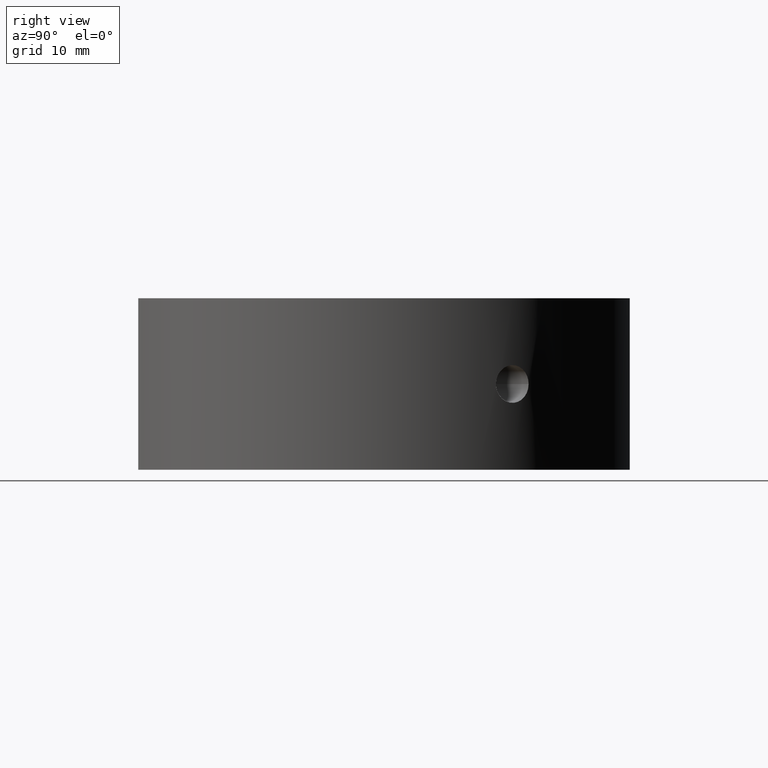
[diagram: clean part render]
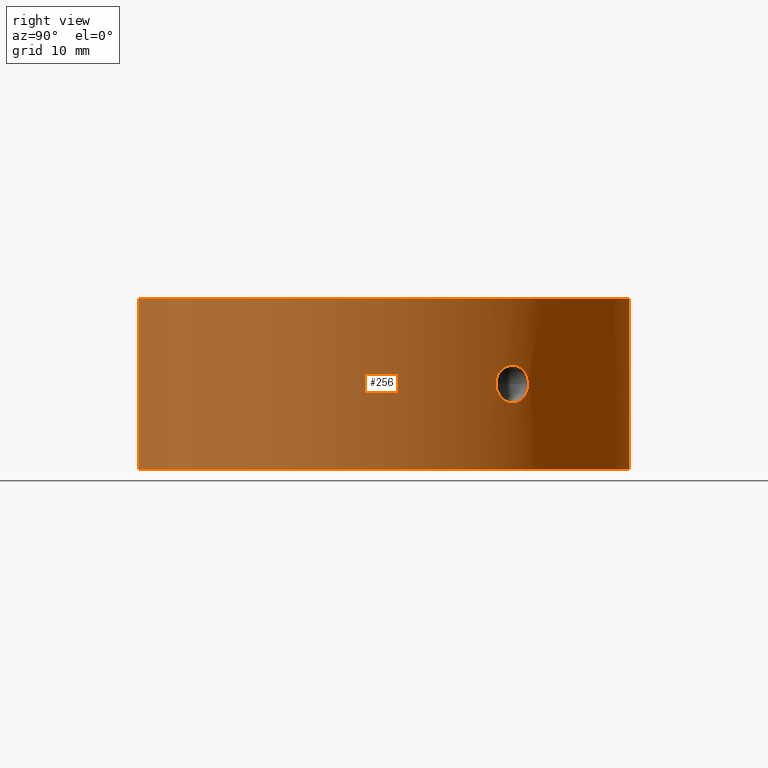
[diagram: same view with one face highlighted and labeled with its STEP entity id]
A machine part, right view. The second image highlights one B-rep face of the part: STEP entity #256.
In plain terms, the highlighted cylindrical surface (partial cylindrical patch) has radius 22.5 mm, axis along (-0, -0, -1).
Its self-contained STEP definition (entity closure, byte-faithful):
#4 = CARTESIAN_POINT ( 'NONE',  ( 18.96389148177692300, 12.10904087917749400, 1.313203471232422300 ) ) ;
#36 = DIRECTION ( 'NONE',  ( -1.000000000000000000, 0.0000000000000000000, 1.156482317317871200E-016 ) ) ;
#67 = CARTESIAN_POINT ( 'NONE',  ( 20.18473157008367700, 9.941244071603097900, -0.7313887006983229600 ) ) ;
#72 = CARTESIAN_POINT ( 'NONE',  ( 19.53910750579124300, 11.15727871636572900, -1.650038529183563800 ) ) ;
#78 = CARTESIAN_POINT ( 'NONE',  ( 18.73010285221147700, 12.46743142315655500, -0.8266368506187205000 ) ) ;
#83 = CARTESIAN_POINT ( 'NONE',  ( 19.59356080178675400, 11.06135154531891600, 1.639150382823926200 ) ) ;
#87 = CARTESIAN_POINT ( 'NONE',  ( 19.05986652157282200, 11.95740520874118400, 1.432719790953435300 ) ) ;
#93 = CARTESIAN_POINT ( 'NONE',  ( 18.79343630011566200, 12.37255088691544100, 1.015440336546102900 ) ) ;
#106 = EDGE_CURVE ( 'NONE', #108, #607, #620, .T. ) ;
#108 = VERTEX_POINT ( 'NONE', #494 ) ;
#118 = DIRECTION ( 'NONE',  ( -1.000000000000000000, 0.0000000000000000000, 1.156482317317871500E-016 ) ) ;
#151 = CARTESIAN_POINT ( 'NONE',  ( 20.25340311474541400, 9.800515791998238400, -0.2171000533953872100 ) ) ;
#153 = CARTESIAN_POINT ( 'NONE',  ( 20.07767266165317800, 10.15593481411592300, -1.089943829978071500 ) ) ;
#155 = CARTESIAN_POINT ( 'NONE',  ( 19.74581530394777200, 10.78715753496944500, -1.565974926310358000 ) ) ;
#162 = CARTESIAN_POINT ( 'NONE',  ( 20.00755817031876700, 10.29337493334318200, -1.243967150874418100 ) ) ;
#165 = CARTESIAN_POINT ( 'NONE',  ( 6.633249580710828900, 21.49999999999999300, -7.500000000000000000 ) ) ;
#171 = CARTESIAN_POINT ( 'NONE',  ( 20.25810641662825200, 9.790767304586779600, 2.020667263021903900E-016 ) ) ;
#181 = CARTESIAN_POINT ( 'NONE',  ( 19.26743418317145300, 11.62136030729271000, 1.607441041680906400 ) ) ;
#186 = VERTEX_POINT ( 'NONE', #755 ) ;
#195 = VECTOR ( 'NONE', #868, 1000.000000000000000 ) ;
#217 = VECTOR ( 'NONE', #804, 1000.000000000000000 ) ;
#228 = AXIS2_PLACEMENT_3D ( 'NONE', #933, #483, #36 ) ;
#230 = CARTESIAN_POINT ( 'NONE',  ( 18.60810641662824200, 12.64865113707539900, 0.0000000000000000000 ) ) ;
#231 = DIRECTION ( 'NONE',  ( -1.224646799147350500E-016, -0.0000000000000000000, -1.000000000000000000 ) ) ;
#254 = CARTESIAN_POINT ( 'NONE',  ( 18.63773781758335700, 12.60496612890543800, -0.4272369033474191500 ) ) ;
#256 = ADVANCED_FACE ( 'NONE', ( #989, #742 ), #684, .T. ) ;
#270 = CARTESIAN_POINT ( 'NONE',  ( 19.54067840921549100, 11.15453927637232200, 1.649912014729165900 ) ) ;
#274 = CARTESIAN_POINT ( 'NONE',  ( 19.96958515143046100, 10.36695330167975700, 1.311713029802912500 ) ) ;
#334 = CARTESIAN_POINT ( 'NONE',  ( 19.69629958059857300, 10.87736110970828200, -1.597151308643778300 ) ) ;
#342 = AXIS2_PLACEMENT_3D ( 'NONE', #759, #231, #565 ) ;
#348 = CARTESIAN_POINT ( 'NONE',  ( 19.37734541238811700, 11.43747880483520200, 1.650174374395400700 ) ) ;
#353 = CARTESIAN_POINT ( 'NONE',  ( 18.63292042189521100, 12.61233949260522600, 0.4347098583132117900 ) ) ;
#361 = CIRCLE ( 'NONE', #599, 22.50000000000000000 ) ;
#362 = CARTESIAN_POINT ( 'NONE',  ( 19.11014104238670800, 11.87697428593569000, 1.483341811114536400 ) ) ;
#384 = B_SPLINE_CURVE_WITH_KNOTS ( 'NONE', 3,
 ( #230, #517, #790, #254, #1115, #1119, #78, #1041, #698, #600, #1127, #955, #594, #72, #690, #334, #155, #511, #429, #1038, #162, #153, #878, #1124, #67, #596, #685, #151, #869, #956 ),
 .UNSPECIFIED., .F., .F.,
 ( 4, 2, 2, 2, 2, 2, 2, 2, 2, 2, 2, 2, 2, 2, 4 ),
 ( 0.0000000000000000000, 0.0003225239514759126100, 0.0006450479029518250100, 0.0009675718544277375200, 0.001290095805903649600, 0.001935143708855469600, 0.002580191611807289200, 0.002902715563283199800, 0.003225239514759109000, 0.003547763466235018700, 0.003870287417710928800, 0.004192811369186838500, 0.004515335320662747800, 0.004837859272138657900, 0.005160383223614567100 ),
 .UNSPECIFIED. ) ;
#413 = ORIENTED_EDGE ( 'NONE', *, *, #106, .T. ) ;
#414 = VERTEX_POINT ( 'NONE', #556 ) ;
#426 = CARTESIAN_POINT ( 'NONE',  ( 6.633249580710816500, -21.50000000000000000, 7.499999999999992000 ) ) ;
#429 = CARTESIAN_POINT ( 'NONE',  ( 19.88622612528881500, 10.52596851185639600, -1.431620527020546900 ) ) ;
#434 = CARTESIAN_POINT ( 'NONE',  ( 18.60810641662824200, 12.64865113707539900, 0.2180671979923877500 ) ) ;
#438 = EDGE_LOOP ( 'NONE', ( #1036, #456 ) ) ;
#440 = VERTEX_POINT ( 'NONE', #165 ) ;
#444 = CARTESIAN_POINT ( 'NONE',  ( 6.633249580710826300, -21.49999999999999300, -31.93906810035839800 ) ) ;
#456 = ORIENTED_EDGE ( 'NONE', *, *, #695, .T. ) ;
#471 = ORIENTED_EDGE ( 'NONE', *, *, #982, .F. ) ;
#483 = DIRECTION ( 'NONE',  ( -1.224646799147350500E-016, -0.0000000000000000000, -1.000000000000000000 ) ) ;
#494 = CARTESIAN_POINT ( 'NONE',  ( 6.633249580710813800, 21.50000000000000000, 7.499999999999999100 ) ) ;
#501 = EDGE_LOOP ( 'NONE', ( #413, #1037, #471, #739 ) ) ;
#511 = CARTESIAN_POINT ( 'NONE',  ( 19.84087060976508700, 10.61130732513321500, -1.483293915646772200 ) ) ;
#517 = CARTESIAN_POINT ( 'NONE',  ( 18.60810641662823500, 12.64865113707539900, -0.1090587332655388500 ) ) ;
#520 = CARTESIAN_POINT ( 'NONE',  ( 19.84179210325432100, 10.60958297846797300, 1.482324220416189900 ) ) ;
#523 = CARTESIAN_POINT ( 'NONE',  ( 19.74687136095041900, 10.78522305285518700, 1.565221042383190700 ) ) ;
#527 = CARTESIAN_POINT ( 'NONE',  ( 19.88626233924009400, 10.52590243420305400, 1.431603215071190400 ) ) ;
#556 = CARTESIAN_POINT ( 'NONE',  ( 6.633249580710804900, -21.50000000000000000, -7.500000000000004400 ) ) ;
#565 = DIRECTION ( 'NONE',  ( -1.000000000000000000, 0.0000000000000000000, 0.0000000000000000000 ) ) ;
#594 = CARTESIAN_POINT ( 'NONE',  ( 19.37761152460760200, 11.43698096140482300, -1.649922622886365700 ) ) ;
#596 = CARTESIAN_POINT ( 'NONE',  ( 20.22126622842621300, 9.866717507186761400, -0.5314702050519211100 ) ) ;
#599 = AXIS2_PLACEMENT_3D ( 'NONE', #1090, #743, #118 ) ;
#600 = CARTESIAN_POINT ( 'NONE',  ( 18.95906081688356100, 12.11722920627536300, -1.319097808869327700 ) ) ;
#601 = EDGE_CURVE ( 'NONE', #186, #822, #384, .T. ) ;
#606 = CARTESIAN_POINT ( 'NONE',  ( 6.633249580710826300, 21.49999999999999300, -31.93906810035839800 ) ) ;
#607 = VERTEX_POINT ( 'NONE', #426 ) ;
#609 = CARTESIAN_POINT ( 'NONE',  ( 20.16681055186465300, 9.977802294282504600, 0.8296025954351868800 ) ) ;
#618 = CARTESIAN_POINT ( 'NONE',  ( 18.91794215107792400, 12.18061084767195200, 1.243597569724803000 ) ) ;
#620 = CIRCLE ( 'NONE', #228, 22.50000000000000400 ) ;
#638 = LINE ( 'NONE', #606, #195 ) ;
#639 = EDGE_CURVE ( 'NONE', #440, #108, #638, .T. ) ;
#684 = CYLINDRICAL_SURFACE ( 'NONE', #342, 22.50000000000000000 ) ;
#685 = CARTESIAN_POINT ( 'NONE',  ( 20.23493833666115500, 9.838583131178307200, -0.4286018244349812400 ) ) ;
#690 = CARTESIAN_POINT ( 'NONE',  ( 19.59309703604851200, 11.06217656773153700, -1.639300148209339400 ) ) ;
#695 = EDGE_CURVE ( 'NONE', #822, #186, #821, .T. ) ;
#696 = CARTESIAN_POINT ( 'NONE',  ( 20.25810641662825500, 9.790767304586777800, 0.2153612982077320300 ) ) ;
#698 = CARTESIAN_POINT ( 'NONE',  ( 18.83463741298944800, 12.30903087960800800, -1.090865916825005700 ) ) ;
#706 = CARTESIAN_POINT ( 'NONE',  ( 20.00850956081370300, 10.29151770626310700, 1.242018767666875700 ) ) ;
#739 = ORIENTED_EDGE ( 'NONE', *, *, #639, .T. ) ;
#742 = FACE_OUTER_BOUND ( 'NONE', #501, .T. ) ;
#743 = DIRECTION ( 'NONE',  ( -1.224646799147350500E-016, -0.0000000000000000000, -1.000000000000000000 ) ) ;
#755 = CARTESIAN_POINT ( 'NONE',  ( 18.60810641662824200, 12.64865113707539900, 0.0000000000000000000 ) ) ;
#759 = CARTESIAN_POINT ( 'NONE',  ( 0.0000000000000000000, 0.0000000000000000000, -31.93906810035839800 ) ) ;
#790 = CARTESIAN_POINT ( 'NONE',  ( 18.61414754889360200, 12.63977662365315000, -0.2162874750742585200 ) ) ;
#799 = CARTESIAN_POINT ( 'NONE',  ( 20.23933298233901500, 9.829861997433777500, 0.4324585402576654500 ) ) ;
#804 = DIRECTION ( 'NONE',  ( -1.224646799147350500E-016, -0.0000000000000000000, -1.000000000000000000 ) ) ;
#821 = B_SPLINE_CURVE_WITH_KNOTS ( 'NONE', 3,
 ( #864, #696, #799, #609, #1047, #706, #274, #527, #520, #523, #1131, #83, #270, #348, #181, #362, #87, #4, #618, #93, #1054, #353, #434, #886 ),
 .UNSPECIFIED., .F., .F.,
 ( 4, 2, 2, 2, 2, 2, 2, 2, 2, 2, 2, 4 ),
 ( 0.005160383223614567100, 0.005805282465315264800, 0.006450181707015961500, 0.006772631327866309100, 0.007095080948716655700, 0.007417530569567003200, 0.007739980190417349900, 0.008384879432118044100, 0.008707329052968393300, 0.009029778673818742600, 0.009674677915519446300, 0.01031957715722014800 ),
 .UNSPECIFIED. ) ;
#822 = VERTEX_POINT ( 'NONE', #171 ) ;
#824 = EDGE_CURVE ( 'NONE', #607, #414, #1091, .T. ) ;
#864 = CARTESIAN_POINT ( 'NONE',  ( 20.25810641662825200, 9.790767304586779600, 2.020667263021903900E-016 ) ) ;
#868 = DIRECTION ( 'NONE',  ( 1.224646799147350500E-016, 0.0000000000000000000, 1.000000000000000000 ) ) ;
#869 = CARTESIAN_POINT ( 'NONE',  ( 20.25810641662825500, 9.790767304586783100, -0.1077054714931357500 ) ) ;
#878 = CARTESIAN_POINT ( 'NONE',  ( 20.10841580517193000, 10.09481037566846600, -1.006534927037093800 ) ) ;
#886 = CARTESIAN_POINT ( 'NONE',  ( 18.60810641662824200, 12.64865113707539900, 0.0000000000000000000 ) ) ;
#933 = CARTESIAN_POINT ( 'NONE',  ( 4.829892851045827200E-015, 0.0000000000000000000, 7.499999999999992900 ) ) ;
#955 = CARTESIAN_POINT ( 'NONE',  ( 19.26616087857675200, 11.62344621037265900, -1.606581491676221100 ) ) ;
#956 = CARTESIAN_POINT ( 'NONE',  ( 20.25810641662825200, 9.790767304586779600, 2.020667263021903900E-016 ) ) ;
#982 = EDGE_CURVE ( 'NONE', #440, #414, #361, .T. ) ;
#989 = FACE_BOUND ( 'NONE', #438, .T. ) ;
#1036 = ORIENTED_EDGE ( 'NONE', *, *, #601, .T. ) ;
#1037 = ORIENTED_EDGE ( 'NONE', *, *, #824, .T. ) ;
#1038 = CARTESIAN_POINT ( 'NONE',  ( 19.96929613211937800, 10.36750763715339100, -1.312163548273846700 ) ) ;
#1041 = CARTESIAN_POINT ( 'NONE',  ( 18.79632113697378800, 12.36737283586470700, -1.005981911973163400 ) ) ;
#1047 = CARTESIAN_POINT ( 'NONE',  ( 20.11224928319719000, 10.08814130276406300, 1.013701896851197900 ) ) ;
#1054 = CARTESIAN_POINT ( 'NONE',  ( 18.72507433916657500, 12.47511210042193900, 0.8315909376945331800 ) ) ;
#1090 = CARTESIAN_POINT ( 'NONE',  ( 2.992922652324802300E-015, 0.0000000000000000000, -7.500000000000003600 ) ) ;
#1091 = LINE ( 'NONE', #444, #217 ) ;
#1115 = CARTESIAN_POINT ( 'NONE',  ( 18.65557363858961200, 12.57860469785120800, -0.5320533464823910000 ) ) ;
#1119 = CARTESIAN_POINT ( 'NONE',  ( 18.70187012172232200, 12.50966737686793600, -0.7318718721764804200 ) ) ;
#1124 = CARTESIAN_POINT ( 'NONE',  ( 20.16184039154099500, 9.987681149316818700, -0.8278483551175395100 ) ) ;
#1127 = CARTESIAN_POINT ( 'NONE',  ( 19.05794274159947900, 11.96178394983556500, -1.442013257166697500 ) ) ;
#1131 = CARTESIAN_POINT ( 'NONE',  ( 19.69639420813844300, 10.87718612969612800, 1.597072805409012200 ) ) ;